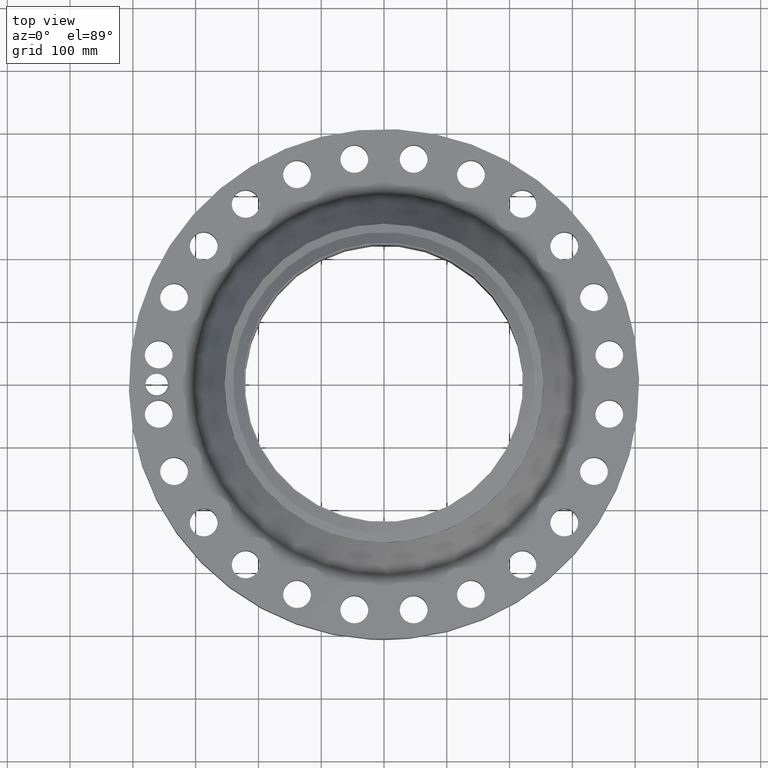
[diagram: clean part render]
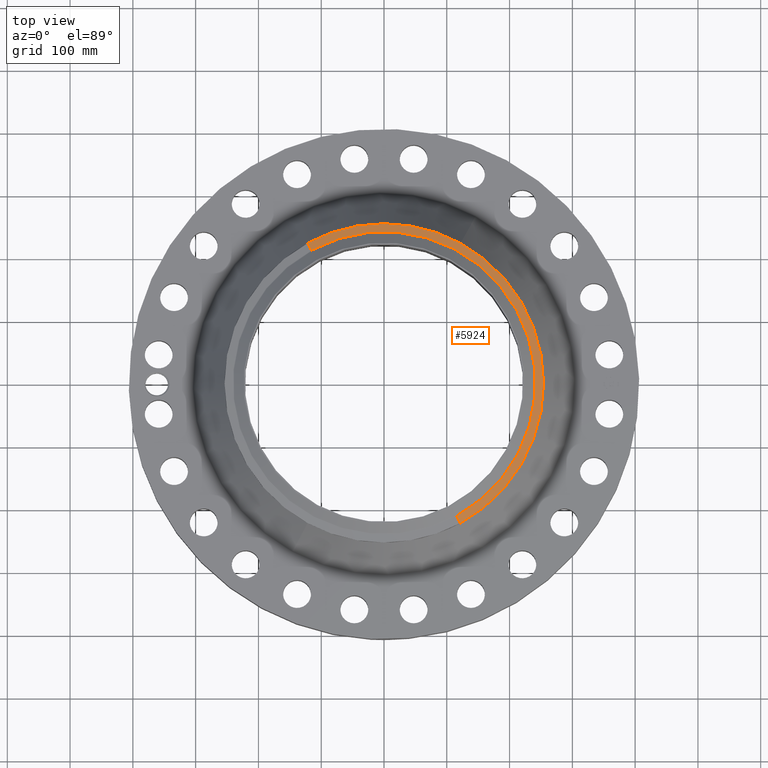
[diagram: same view with one face highlighted and labeled with its STEP entity id]
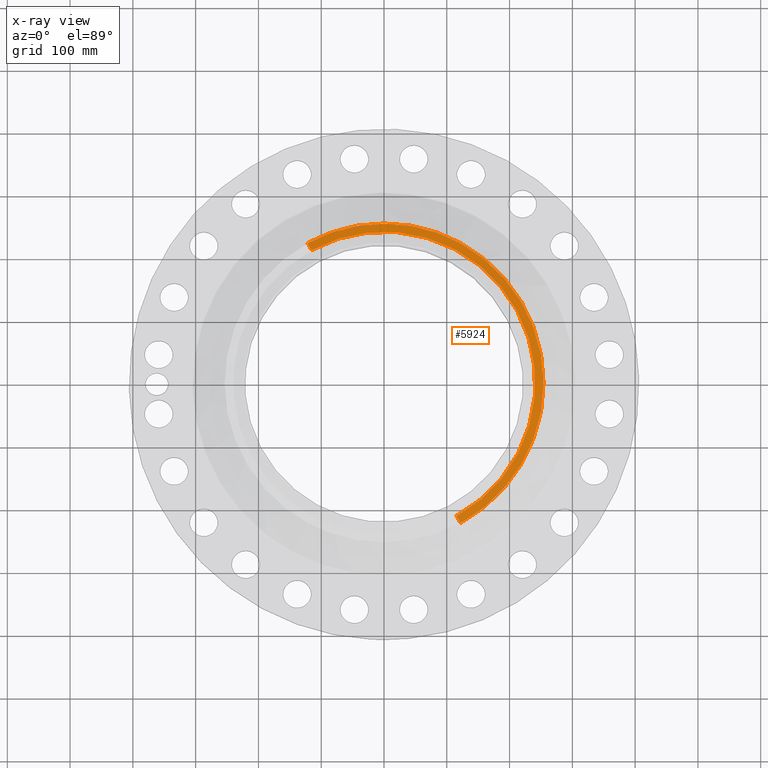
[diagram: x-ray of the same camera — body ghosted, the highlighted face saturated]
A machine part, top view. The second image highlights one B-rep face of the part: STEP entity #5924.
The next image is the same camera in x-ray: the body ghosted, the highlighted face saturated — about 0% of this face is hidden behind the body in this view.
In plain terms, the highlighted conical surface has half-angle 80 deg.
Its self-contained STEP definition (entity closure, byte-faithful):
#4444=AXIS2_PLACEMENT_3D('Circle Axis2P3D',#4442,#4443,$) ;
#4471=AXIS2_PLACEMENT_3D('Circle Axis2P3D',#4469,#4470,$) ;
#5283=AXIS2_PLACEMENT_3D('Circle Axis2P3D',#5281,#5282,$) ;
#5905=AXIS2_PLACEMENT_3D('Cone Axis2P3D',#5902,#5903,#5904) ;
#4439=CARTESIAN_POINT('Vertex',(4.79425538606,8.77582561894,7.142457966)) ;
#4442=CARTESIAN_POINT('Axis2P3D Location',(0.,0.,7.142457966)) ;
#4446=CARTESIAN_POINT('Vertex',(4.79425538606,-8.77582561894,7.142457966)) ;
#4466=CARTESIAN_POINT('Vertex',(-4.79425538606,8.77582561894,7.142457966)) ;
#4469=CARTESIAN_POINT('Axis2P3D Location',(0.,0.,7.142457966)) ;
#5259=CARTESIAN_POINT('Vertex',(-4.55238223415,8.33307978416,7.23141601925)) ;
#5266=CARTESIAN_POINT('Vertex',(4.55238223415,-8.33307978416,7.23141601925)) ;
#5281=CARTESIAN_POINT('Axis2P3D Location',(0.,0.,7.23141601925)) ;
#5902=CARTESIAN_POINT('Axis2P3D Location',(0.,0.,7.23141601925)) ;
#5907=CARTESIAN_POINT('Line Origine',(-4.67331881011,8.55445270155,7.18693699263)) ;
#5912=CARTESIAN_POINT('Line Origine',(4.67331881011,-8.55445270155,7.18693699263)) ;
#4443=DIRECTION('Axis2P3D Direction',(0.,0.,-0.0393700787402)) ;
#4470=DIRECTION('Axis2P3D Direction',(0.,0.,-0.0393700787402)) ;
#5282=DIRECTION('Axis2P3D Direction',(0.,0.,0.0393700787402)) ;
#5903=DIRECTION('Axis2P3D Direction',(-0.,-0.,-0.0393700787402)) ;
#5904=DIRECTION('Axis2P3D XDirection',(0.0188750212049,-0.0345504945626,0.)) ;
#5908=DIRECTION('Vector Direction',(-0.0185882672208,0.0340255949157,-0.00683654242783)) ;
#5913=DIRECTION('Vector Direction',(0.0185882672208,-0.0340255949157,-0.00683654242783)) ;
#5909=VECTOR('Line Direction',#5908,0.0393700787402) ;
#5914=VECTOR('Line Direction',#5913,0.0393700787402) ;
#5918=ORIENTED_EDGE('',*,*,#5911,.F.) ;
#5919=ORIENTED_EDGE('',*,*,#5285,.F.) ;
#5920=ORIENTED_EDGE('',*,*,#5916,.T.) ;
#5921=ORIENTED_EDGE('',*,*,#4448,.T.) ;
#5922=ORIENTED_EDGE('',*,*,#4473,.F.) ;
#5924=ADVANCED_FACE('PartBody',(#5923),#5906,.T.) ;
#4445=CIRCLE('generated circle',#4444,10.) ;
#4472=CIRCLE('generated circle',#4471,10.) ;
#5284=CIRCLE('generated circle',#5283,9.49549380996) ;
#5906=CONICAL_SURFACE('Cone',#5905,9.49549380996,1.3962634016) ;
#4448=EDGE_CURVE('',#4447,#4440,#4445,.F.) ;
#4473=EDGE_CURVE('',#4467,#4440,#4472,.T.) ;
#5285=EDGE_CURVE('',#5267,#5260,#5284,.T.) ;
#5911=EDGE_CURVE('',#5260,#4467,#5910,.T.) ;
#5916=EDGE_CURVE('',#5267,#4447,#5915,.T.) ;
#5917=EDGE_LOOP('',(#5918,#5919,#5920,#5921,#5922)) ;
#5923=FACE_OUTER_BOUND('',#5917,.T.) ;
#5910=LINE('Line',#5907,#5909) ;
#5915=LINE('Line',#5912,#5914) ;
#4440=VERTEX_POINT('',#4439) ;
#4447=VERTEX_POINT('',#4446) ;
#4467=VERTEX_POINT('',#4466) ;
#5260=VERTEX_POINT('',#5259) ;
#5267=VERTEX_POINT('',#5266) ;